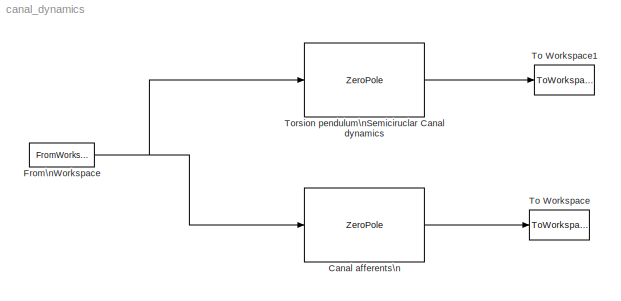
MODEL canal_dynamics
KIND model
BLOCK [ZeroPole] Canal afferents\n
  Gain = [T/(T1*T2)]
  Poles = [-1/T1 -1/T2]
  Zeros = [0 -1/T]
BLOCK [FromWorkspace] From\nWorkspace
  SampleTime = Ts
  VariableName = [t input]
BLOCK [ToWorkspace] To Workspace
  MaxDataPoints = inf
  SampleTime = Ts
  SaveFormat = Array
  VariableName = simoutCA
BLOCK [ToWorkspace] To Workspace1
  MaxDataPoints = inf
  SampleTime = Ts
  SaveFormat = Array
  VariableName = simoutTP
BLOCK [ZeroPole] Torsion pendulum\nSemiciruclar Canal dynamics
  Gain = [1/(T1*T2)]
  Poles = [-1/T1 -1/T2]
  Zeros = []
LINE Canal afferents\n:1 -> To Workspace:1
NET From\nWorkspace:1 -> Canal afferents\n:1, Torsion pendulum\nSemiciruclar Canal dynamics:1
LINE Torsion pendulum\nSemiciruclar Canal dynamics:1 -> To Workspace1:1
note: NET lines group one-source signal fan-out (src -> all destinations, sorted); 1:1 wires keep LINE
